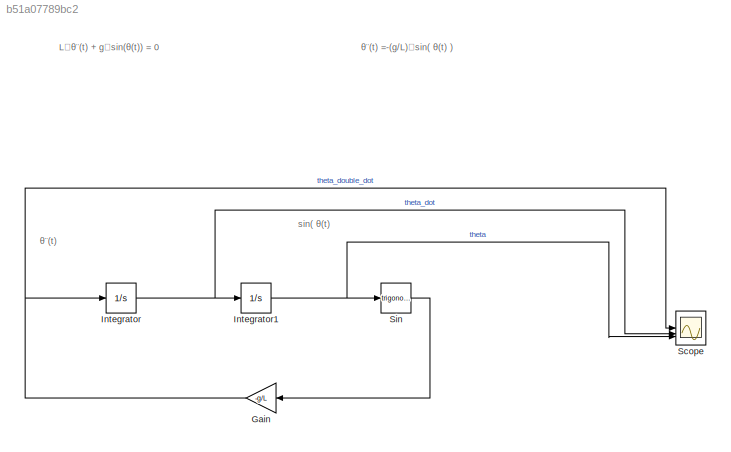
MODEL slx_b51a07789bc2
KIND model
CONFIG AbsTol = auto
CONFIG EnableMultiTasking = off
CONFIG FixedStep = 0.003
CONFIG MaxStep = auto
CONFIG MinStep = auto
CONFIG RelTol = 1e-3
CONFIG SampleTimeConstraint = Unconstrained
CONFIG SolverName = FixedStepAuto
CONFIG StartTime = 0.0
CONFIG StopTime = 10.0
BLOCK [Gain] Gain
  Gain = -g/L
  NameLocation = top
BLOCK [Integrator] Integrator
BLOCK [Integrator] Integrator1
  InitialCondition = 2
BLOCK [Scope] Scope
  Floating = off
  NumInputPorts = 3
  ScopeSpecificationString = Simulink.scopes.TimeScopeBlockCfg('CurrentConfiguration', extmgr.ConfigurationSet(extmgr.Configuration('Core','General UI',true),extmgr.Configuration('Core','Source UI',true),extmgr.Configuration('Sources','WiredSimulink',true),extmgr.Configuration('Visuals','Time Domain',true,'SerializedDisplays',{struct('MinYLimReal','-12.25','MaxYLimReal','12.25','YLabelReal','','MinYLimMag','0.00000','MaxYLimM...<+1367ch>
BLOCK [Trigonometry] Sin
ANNOTATION (root): L ⋅ θ ¨( t ) + g ⋅sin( θ ( t )) = 0
ANNOTATION (root): sin( θ ( t )
ANNOTATION (root): θ ¨( t ) =-( g/ L )⋅sin( θ ( t ) )
ANNOTATION (root): θ ¨( t )
NET Gain:1 -> Integrator:1, Scope:1
NET Integrator1:1 -> Scope:3, Sin:1
NET Integrator:1 -> Integrator1:1, Scope:2
LINE Sin:1 -> Gain:1
note: NET lines group one-source signal fan-out (src -> all destinations, sorted); 1:1 wires keep LINE
